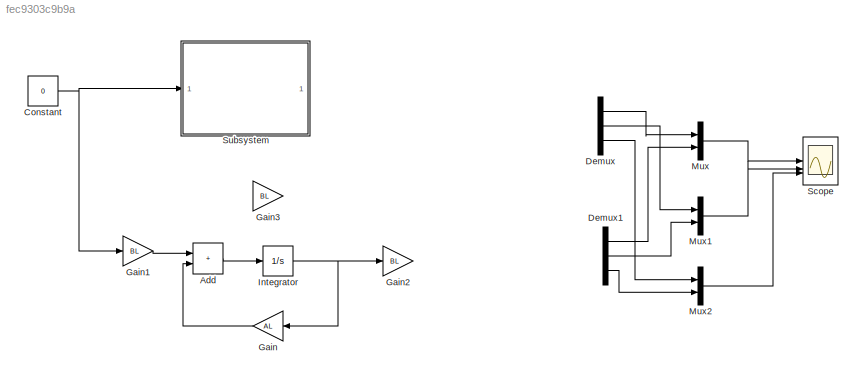
MODEL slx_fec9303c9b9a
KIND model
CONFIG AbsTol = auto
CONFIG EnableMultiTasking = off
CONFIG FixedStep = auto
CONFIG MaxStep = 1e-3
CONFIG MinStep = auto
CONFIG RelTol = 1e-3
CONFIG SampleTimeConstraint = Unconstrained
CONFIG SolverName = ode45
CONFIG StartTime = 0.0
CONFIG StopTime = 0.5
BLOCK [Sum] Add
  IconShape = rectangular
BLOCK [Constant] Constant
  Value = 0
BLOCK [Demux] Demux
  Outputs = 3
BLOCK [Demux] Demux1
  Outputs = 3
BLOCK [Gain] Gain
  Gain = AL
  Multiplication = Matrix(K*u)
  NameLocation = top
BLOCK [Gain] Gain1
  Gain = BL
  Multiplication = Matrix(K*u)
BLOCK [Gain] Gain2
  Gain = BL
  Multiplication = Matrix(K*u)
BLOCK [Gain] Gain3
  Gain = BL
  Multiplication = Matrix(K*u)
BLOCK [Integrator] Integrator
BLOCK [Mux] Mux
  DisplayOption = bar
  Inputs = 2
BLOCK [Mux] Mux1
  DisplayOption = bar
  Inputs = 2
BLOCK [Mux] Mux2
  DisplayOption = bar
  Inputs = 2
BLOCK [Scope] Scope
  Floating = off
  NumInputPorts = 3
  ScopeSpecificationString = Simulink.scopes.TimeScopeBlockCfg('CurrentConfiguration', extmgr.ConfigurationSet(extmgr.Configuration('Core','General UI',true,'FigureColor',[1 1 1]),extmgr.Configuration('Core','Source UI',true),extmgr.Configuration('Sources','WiredSimulink',true),extmgr.Configuration('Visuals','Time Domain',true,'SerializedDisplays',{struct('MinYLimReal','-0.00859','MaxYLimReal','0.11067','YLabelReal','','MinYL...<+3871ch>
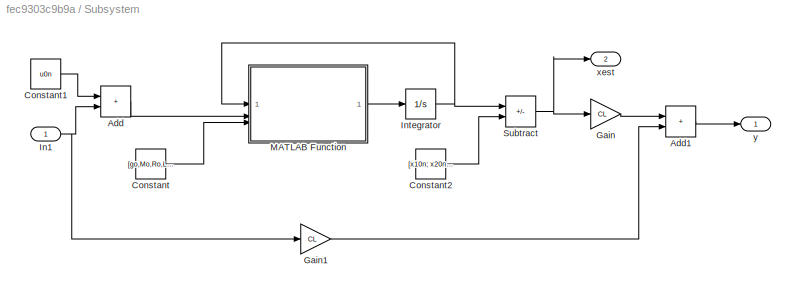
BLOCK [SubSystem] Subsystem
BLOCK [Sum] Subsystem/Add
  IconShape = rectangular
BLOCK [Sum] Subsystem/Add1
  IconShape = rectangular
BLOCK [Constant] Subsystem/Constant
  Value = [go,Mo,Ro,Lo]
BLOCK [Constant] Subsystem/Constant1
  Value = u0n
BLOCK [Constant] Subsystem/Constant2
  Value = [x10n; x20n; x30n]
BLOCK [Gain] Subsystem/Gain
  Gain = CL
  Multiplication = Matrix(K*u)
BLOCK [Gain] Subsystem/Gain1
  Gain = CL
  Multiplication = Matrix(K*u)
BLOCK [Inport] Subsystem/In1
BLOCK [Integrator] Subsystem/Integrator
  InitialCondition = [x10n; x20n; x30n]
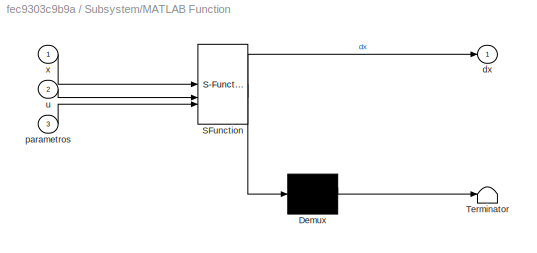
BLOCK [SubSystem] Subsystem/MATLAB Function
  ErrorFcn = Stateflow.Translate.translate
  PermitHierarchicalResolution = ExplicitOnly
  SFBlockType = MATLAB Function
  TreatAsAtomicUnit = on
BLOCK [Demux] Subsystem/MATLAB Function/ Demux 
  Outputs = 1
BLOCK [S-Function] Subsystem/MATLAB Function/ SFunction 
  EnableBusSupport = on
  FunctionName = sf_sfun
  PortCounts = [3 2]
  SFcnIsStateOwnerBlock = off
  SFunctionDeploymentMode = off
  Tag = Stateflow S-Function 2
BLOCK [Terminator] Subsystem/MATLAB Function/ Terminator 
BLOCK [Outport] Subsystem/MATLAB Function/dx
BLOCK [Inport] Subsystem/MATLAB Function/parametros
  Port = 3
BLOCK [Inport] Subsystem/MATLAB Function/u
  Port = 2
BLOCK [Inport] Subsystem/MATLAB Function/x
BLOCK [Sum] Subsystem/Subtract
  IconShape = rectangular
  Inputs = +-
BLOCK [Outport] Subsystem/xest
  Port = 2
BLOCK [Outport] Subsystem/y
LINE Add:1 -> Integrator:1
NET Constant:1 -> Gain1:1, Subsystem:1
LINE Demux1:1 -> Mux:2
LINE Demux1:2 -> Mux1:2
LINE Demux1:3 -> Mux2:2
LINE Demux:1 -> Mux:1
LINE Demux:2 -> Mux1:1
LINE Demux:3 -> Mux2:1
LINE Gain1:1 -> Add:1
LINE Gain:1 -> Add:2
NET Integrator:1 -> Gain2:1, Gain:1
LINE Mux1:1 -> Scope:2
LINE Mux2:1 -> Scope:3
LINE Mux:1 -> Scope:1
LINE Subsystem/Add1:1 -> Subsystem/y:1
LINE Subsystem/Add:1 -> Subsystem/MATLAB Function:2
LINE Subsystem/Constant1:1 -> Subsystem/Add:1
LINE Subsystem/Constant2:1 -> Subsystem/Subtract:2
LINE Subsystem/Constant:1 -> Subsystem/MATLAB Function:3
LINE Subsystem/Gain1:1 -> Subsystem/Add1:2
LINE Subsystem/Gain:1 -> Subsystem/Add1:1
NET Subsystem/In1:1 -> Subsystem/Add:2, Subsystem/Gain1:1
NET Subsystem/Integrator:1 -> Subsystem/MATLAB Function:1, Subsystem/Subtract:1
LINE Subsystem/MATLAB Function:1 -> Subsystem/Integrator:1
NET Subsystem/Subtract:1 -> Subsystem/Gain:1, Subsystem/xest:1
note: NET lines group one-source signal fan-out (src -> all destinations, sorted); 1:1 wires keep LINE
CHART Subsystem/MATLAB Function states=1 transitions=1
  STATE_LABEL 'eML_blk_kernel()'
  STATE_LABEL 'SCRIPT:\nfunction dx = fcn(x,u,parametros)\n\nx1 = x(1);\nx2 = x(2);\nx3 = x(3);\ng = parametros(1);\nM = parametros(2);\nR = parametros(3);\nL = parametros(4);\n\nf1 = x2;\nf2 = g - x3^2/(M*x1);\nf3 = -R*x3/L + u/L;\ndx = [f1; f2; f3];\n'
CHART  states=0 transitions=0
